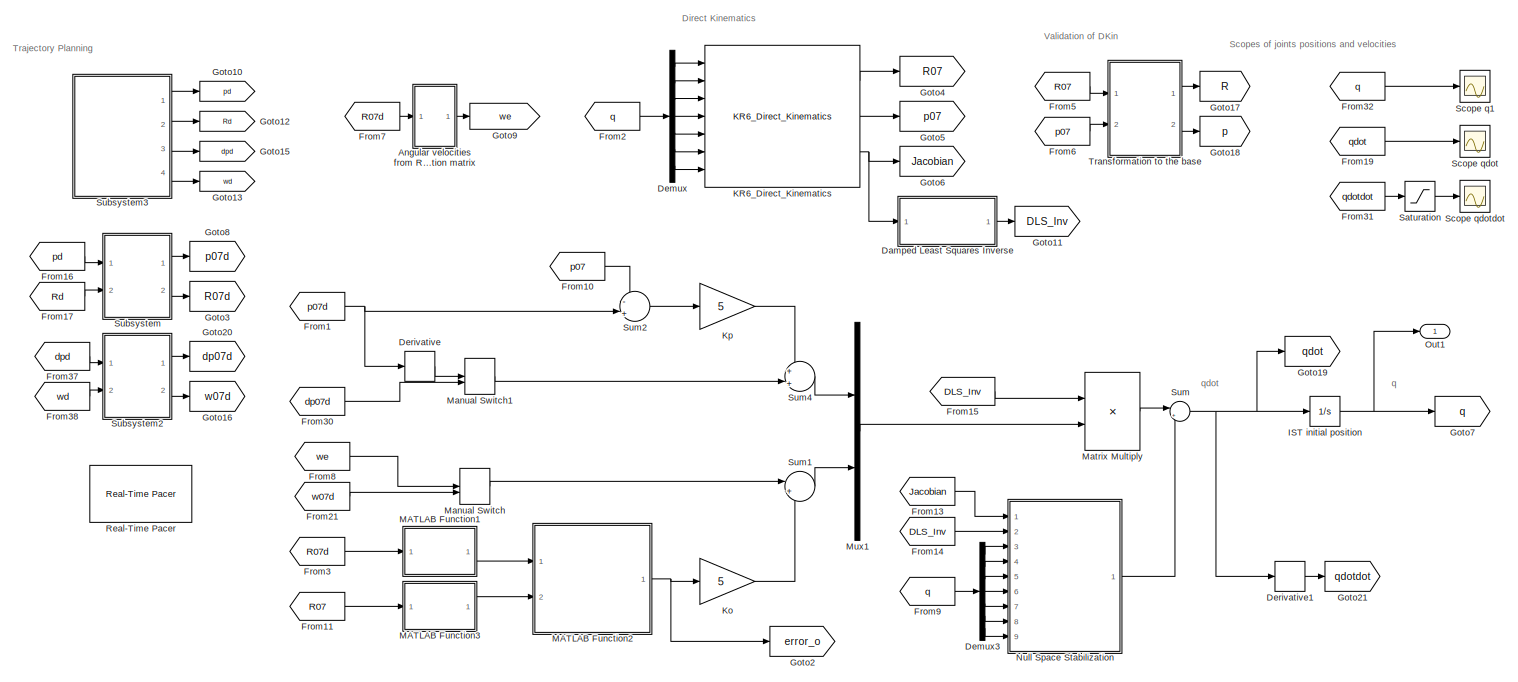
[diagram: root canvas - part 1/2, left side, full height]
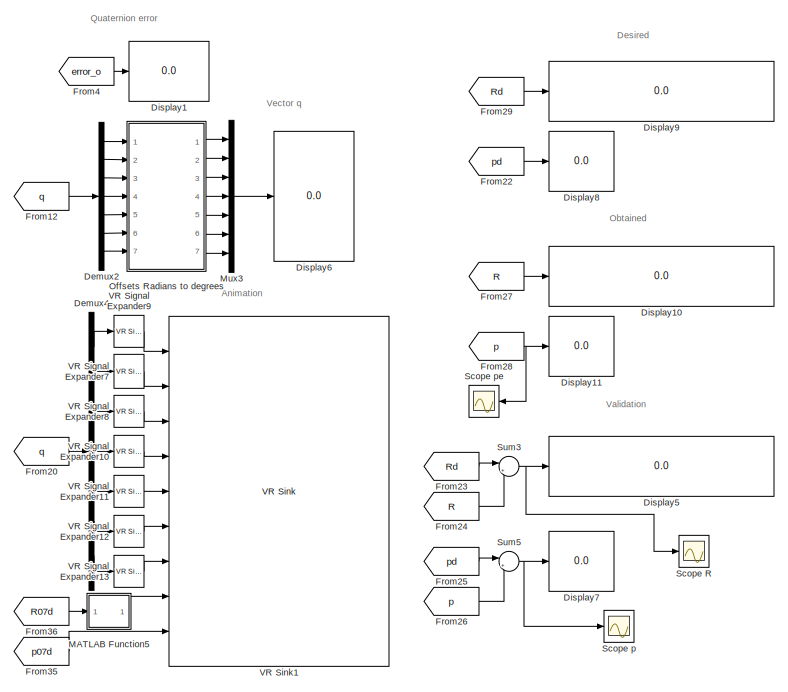
[diagram: root canvas - part 2/2, right side, full height]
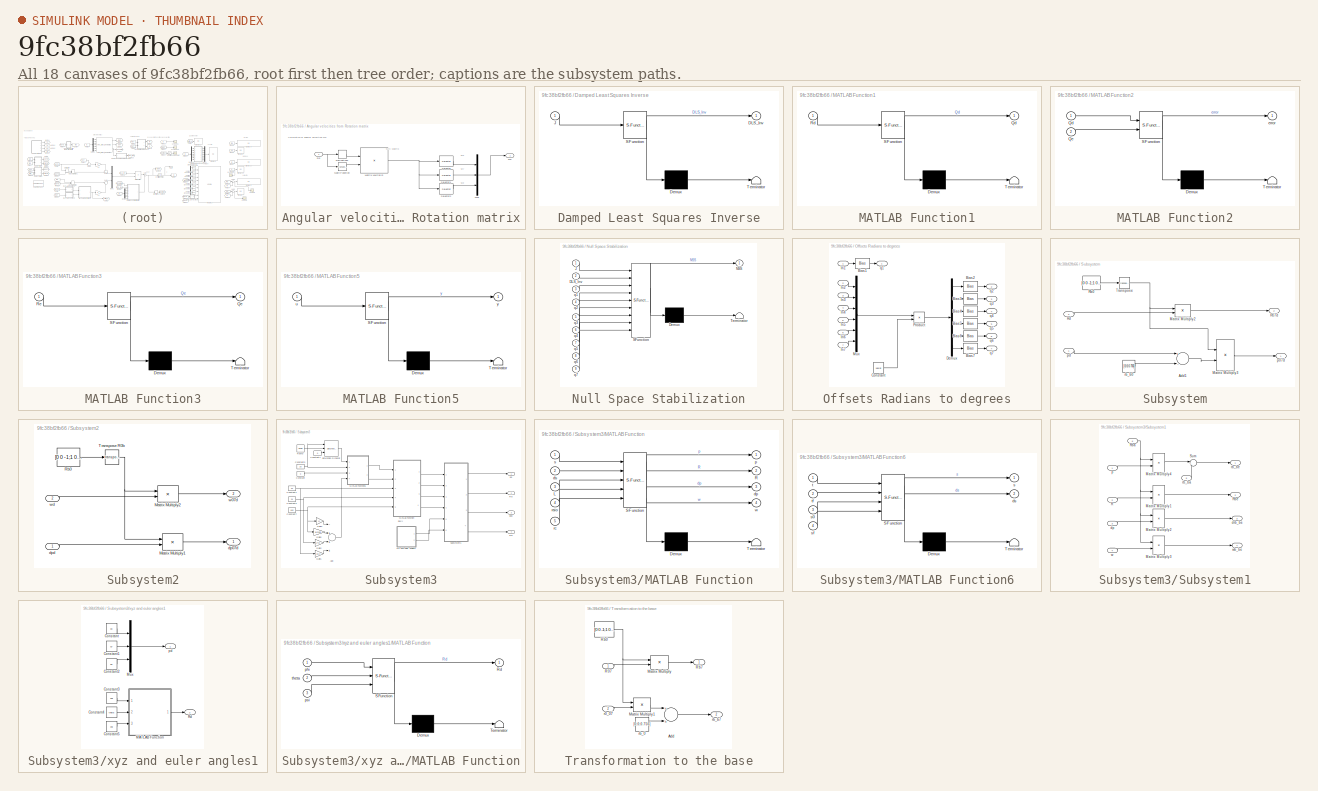
[diagram: thumbnail index - all 18 canvases of the model, root first then tree order]
MODEL slx_9fc38bf2fb66
KIND model
CONFIG AbsTol = auto
CONFIG EnableMultiTasking = off
CONFIG FixedStep = 0.01
CONFIG MaxStep = auto
CONFIG MinStep = auto
CONFIG RelTol = 1e-3
CONFIG SampleTimeConstraint = Unconstrained
CONFIG Solver = FixedStepAuto
CONFIG SolverName = FixedStepAuto
CONFIG StartTime = 0.0
CONFIG StopTime = 20
BLOCK [SubSystem] Angular velocities from Rotation matrix
  Ports = [1, 1]
  RequestExecContextInheritance = off
BLOCK [Derivative] Angular velocities from Rotation matrix/Derivative2
BLOCK [Math] Angular velocities from Rotation matrix/Math Function
  Operator = transpose
  Ports = [1, 1]
BLOCK [Product] Angular velocities from Rotation matrix/Matrix Multiply3
  InputSameDT = off
  Multiplication = Matrix(*)
  OutDataTypeStr = Inherit: Inherit via internal rule
  Ports = [2, 1]
  RndMeth = Floor
  SaturateOnIntegerOverflow = off
BLOCK [Mux] Angular velocities from Rotation matrix/Mux
  DisplayOption = bar
  Inputs = 3
  Ports = [3, 1]
BLOCK [Inport] Angular velocities from Rotation matrix/Rd
  IconDisplay = Port number
BLOCK [Selector] Angular velocities from Rotation matrix/Selector
  IndexOptions = Index vector (dialog),Index vector (dialog)
  Indices = [3],[2]
  InputPortWidth = 3
  NumberOfDimensions = 2
  OutputSizes = 1,1
  Ports = [1, 1]
BLOCK [Selector] Angular velocities from Rotation matrix/Selector1
  IndexOptions = Index vector (dialog),Index vector (dialog)
  Indices = [1],[3]
  InputPortWidth = 3
  NumberOfDimensions = 2
  OutputSizes = 1,1
  Ports = [1, 1]
BLOCK [Selector] Angular velocities from Rotation matrix/Selector2
  IndexOptions = Index vector (dialog),Index vector (dialog)
  Indices = [2],[1]
  InputPortWidth = 3
  NumberOfDimensions = 2
  OutputSizes = 1,1
  Ports = [1, 1]
BLOCK [Outport] Angular velocities from Rotation matrix/we
  IconDisplay = Port number
BLOCK [SubSystem] Damped Least Squares Inverse
  ErrorFcn = Stateflow.Translate.translate
  PermitHierarchicalResolution = ExplicitOnly
  Ports = [1, 1]
  RequestExecContextInheritance = off
  SFBlockType = MATLAB Function
  TreatAsAtomicUnit = on
BLOCK [Demux] Damped Least Squares Inverse/ Demux 
  Outputs = 1
  Ports = [1, 1]
BLOCK [S-Function] Damped Least Squares Inverse/ SFunction 
  EnableBusSupport = on
  FunctionName = sf_sfun
  PortCounts = [1 2]
  Ports = [1, 2]
  SFcnIsStateOwnerBlock = off
  SFunctionDeploymentMode = off
  Tag = Stateflow S-Function KR6_CLIK_IST 5
BLOCK [Terminator] Damped Least Squares Inverse/ Terminator 
BLOCK [Outport] Damped Least Squares Inverse/DLS_Inv
  IconDisplay = Port number
BLOCK [Inport] Damped Least Squares Inverse/J
  IconDisplay = Port number
BLOCK [Demux] Demux
  DisplayOption = bar
  Outputs = 7
  Ports = [1, 7]
BLOCK [Demux] Demux2
  DisplayOption = bar
  Outputs = 7
  Ports = [1, 7]
BLOCK [Demux] Demux3
  DisplayOption = bar
  Outputs = 7
  Ports = [1, 7]
BLOCK [Demux] Demux4
  DisplayOption = bar
  Outputs = 7
  Ports = [1, 7]
BLOCK [Derivative] Derivative
BLOCK [Derivative] Derivative1
BLOCK [Display] Display1
  Decimation = 1
  Ports = [1]
BLOCK [Display] Display10
  Decimation = 1
  Ports = [1]
BLOCK [Display] Display11
  Decimation = 1
  Ports = [1]
BLOCK [Display] Display5
  Decimation = 1
  Ports = [1]
BLOCK [Display] Display6
  Decimation = 1
  Ports = [1]
BLOCK [Display] Display7
  Decimation = 1
  Ports = [1]
BLOCK [Display] Display8
  Decimation = 1
  Ports = [1]
BLOCK [Display] Display9
  Decimation = 1
  Ports = [1]
BLOCK [From] From1
  GotoTag = p07d
BLOCK [From] From10
  GotoTag = p07
BLOCK [From] From11
  GotoTag = R07
BLOCK [From] From12
  GotoTag = q
BLOCK [From] From13
  GotoTag = Jacobian
BLOCK [From] From14
  GotoTag = DLS_Inv
BLOCK [From] From15
  GotoTag = DLS_Inv
BLOCK [From] From16
  GotoTag = pd
BLOCK [From] From17
  GotoTag = Rd
BLOCK [From] From19
  GotoTag = qdot
BLOCK [From] From2
  GotoTag = q
BLOCK [From] From20
  GotoTag = q
BLOCK [From] From21
  GotoTag = w07d
BLOCK [From] From22
  GotoTag = pd
BLOCK [From] From23
  GotoTag = Rd
BLOCK [From] From24
  GotoTag = R
BLOCK [From] From25
  GotoTag = pd
BLOCK [From] From26
  GotoTag = p
BLOCK [From] From27
  GotoTag = R
BLOCK [From] From28
  GotoTag = p
BLOCK [From] From29
  GotoTag = Rd
BLOCK [From] From3
  GotoTag = R07d
BLOCK [From] From30
  GotoTag = dp07d
BLOCK [From] From31
  GotoTag = qdotdot
BLOCK [From] From32
  GotoTag = q
BLOCK [From] From35
  GotoTag = p07d
BLOCK [From] From36
  GotoTag = R07d
BLOCK [From] From37
  GotoTag = dpd
BLOCK [From] From38
  GotoTag = wd
BLOCK [From] From4
  GotoTag = error_o
BLOCK [From] From5
  GotoTag = R07
BLOCK [From] From6
  GotoTag = p07
BLOCK [From] From7
  GotoTag = R07d
BLOCK [From] From8
  GotoTag = we
BLOCK [From] From9
  GotoTag = q
BLOCK [Goto] Goto10
  GotoTag = pd
BLOCK [Goto] Goto11
  GotoTag = DLS_Inv
BLOCK [Goto] Goto12
  GotoTag = Rd
BLOCK [Goto] Goto13
  GotoTag = wd
BLOCK [Goto] Goto15
  GotoTag = dpd
BLOCK [Goto] Goto16
  GotoTag = w07d
BLOCK [Goto] Goto17
  GotoTag = R
BLOCK [Goto] Goto18
  GotoTag = p
BLOCK [Goto] Goto19
  GotoTag = qdot
BLOCK [Goto] Goto2
  GotoTag = error_o
BLOCK [Goto] Goto20
  GotoTag = dp07d
BLOCK [Goto] Goto21
  GotoTag = qdotdot
BLOCK [Goto] Goto3
  GotoTag = R07d
BLOCK [Goto] Goto4
  GotoTag = R07
BLOCK [Goto] Goto5
  GotoTag = p07
BLOCK [Goto] Goto6
  GotoTag = Jacobian
BLOCK [Goto] Goto7
  GotoTag = q
BLOCK [Goto] Goto8
  GotoTag = p07d
BLOCK [Goto] Goto9
  GotoTag = we
BLOCK [Integrator] IST initial position
  InitialCondition = [-0.700735072364346	0.260226322165590	-1.41409718169695	0.123044715609812	0.767247092108692	-0.379724450954367	0.840390763239879]
  Ports = [1, 1]
  ZeroCross = off
BLOCK [Reference] KR6_Direct_Kinematics  REF=KR6_Lib/KR6_Direct_Kinematics
  Ports = [7, 3]
  SourceBlock = KR6_Lib/KR6_Direct_Kinematics
  SourceType = SubSystem
BLOCK [Gain] Ko
  Gain = 5
  Multiplication = Matrix(K*u)
  OutDataTypeStr = Inherit: Inherit via internal rule
  ParamDataTypeStr = Inherit: Inherit via internal rule
  SaturateOnIntegerOverflow = off
BLOCK [Gain] Kp
  Gain = 5
  Multiplication = Matrix(K*u)
  OutDataTypeStr = Inherit: Inherit via internal rule
  ParamDataTypeStr = Inherit: Inherit via internal rule
  SaturateOnIntegerOverflow = off
BLOCK [SubSystem] MATLAB Function1
  ErrorFcn = Stateflow.Translate.translate
  PermitHierarchicalResolution = ExplicitOnly
  Ports = [1, 1]
  RequestExecContextInheritance = off
  SFBlockType = MATLAB Function
  TreatAsAtomicUnit = on
BLOCK [Demux] MATLAB Function1/ Demux 
  Outputs = 1
  Ports = [1, 1]
BLOCK [S-Function] MATLAB Function1/ SFunction 
  EnableBusSupport = on
  FunctionName = sf_sfun
  PortCounts = [1 2]
  Ports = [1, 2]
  SFcnIsStateOwnerBlock = off
  SFunctionDeploymentMode = off
  Tag = Stateflow S-Function KR6_CLIK_IST 6
BLOCK [Terminator] MATLAB Function1/ Terminator 
BLOCK [Outport] MATLAB Function1/Qd
  IconDisplay = Port number
BLOCK [Inport] MATLAB Function1/Rd
  IconDisplay = Port number
BLOCK [SubSystem] MATLAB Function2
  ErrorFcn = Stateflow.Translate.translate
  PermitHierarchicalResolution = ExplicitOnly
  Ports = [2, 1]
  RequestExecContextInheritance = off
  SFBlockType = MATLAB Function
  TreatAsAtomicUnit = on
BLOCK [Demux] MATLAB Function2/ Demux 
  Outputs = 1
  Ports = [1, 1]
BLOCK [S-Function] MATLAB Function2/ SFunction 
  EnableBusSupport = on
  FunctionName = sf_sfun
  PortCounts = [2 2]
  Ports = [2, 2]
  SFcnIsStateOwnerBlock = off
  SFunctionDeploymentMode = off
  Tag = Stateflow S-Function KR6_CLIK_IST 7
BLOCK [Terminator] MATLAB Function2/ Terminator 
BLOCK [Inport] MATLAB Function2/Qd
  IconDisplay = Port number
BLOCK [Inport] MATLAB Function2/Qe
  IconDisplay = Port number
  Port = 2
BLOCK [Outport] MATLAB Function2/error
  IconDisplay = Port number
BLOCK [SubSystem] MATLAB Function3
  ErrorFcn = Stateflow.Translate.translate
  PermitHierarchicalResolution = ExplicitOnly
  Ports = [1, 1]
  RequestExecContextInheritance = off
  SFBlockType = MATLAB Function
  TreatAsAtomicUnit = on
BLOCK [Demux] MATLAB Function3/ Demux 
  Outputs = 1
  Ports = [1, 1]
BLOCK [S-Function] MATLAB Function3/ SFunction 
  EnableBusSupport = on
  FunctionName = sf_sfun
  PortCounts = [1 2]
  Ports = [1, 2]
  SFcnIsStateOwnerBlock = off
  SFunctionDeploymentMode = off
  Tag = Stateflow S-Function KR6_CLIK_IST 2
BLOCK [Terminator] MATLAB Function3/ Terminator 
BLOCK [Outport] MATLAB Function3/Qe
  IconDisplay = Port number
BLOCK [Inport] MATLAB Function3/Re
  IconDisplay = Port number
BLOCK [SubSystem] MATLAB Function5
  ErrorFcn = Stateflow.Translate.translate
  PermitHierarchicalResolution = ExplicitOnly
  Ports = [1, 1]
  RequestExecContextInheritance = off
  SFBlockType = MATLAB Function
  TreatAsAtomicUnit = on
BLOCK [Demux] MATLAB Function5/ Demux 
  Outputs = 1
  Ports = [1, 1]
BLOCK [S-Function] MATLAB Function5/ SFunction 
  EnableBusSupport = on
  FunctionName = sf_sfun
  PortCounts = [1 2]
  Ports = [1, 2]
  SFcnIsStateOwnerBlock = off
  SFunctionDeploymentMode = off
  Tag = Stateflow S-Function KR6_CLIK_IST 9
BLOCK [Terminator] MATLAB Function5/ Terminator 
BLOCK [Inport] MATLAB Function5/u
  IconDisplay = Port number
BLOCK [Outport] MATLAB Function5/y
  IconDisplay = Port number
BLOCK [ManualSwitch] Manual Switch
  CurrentSetting = 0
BLOCK [ManualSwitch] Manual Switch1
  CurrentSetting = 0
BLOCK [Product] Matrix Multiply
  InputSameDT = off
  Multiplication = Matrix(*)
  OutDataTypeStr = Inherit: Inherit via internal rule
  Ports = [2, 1]
  RndMeth = Floor
  SaturateOnIntegerOverflow = off
BLOCK [Mux] Mux1
  DisplayOption = bar
  Inputs = 2
  Ports = [2, 1]
BLOCK [Mux] Mux3
  DisplayOption = bar
  Inputs = 7
  Ports = [7, 1]
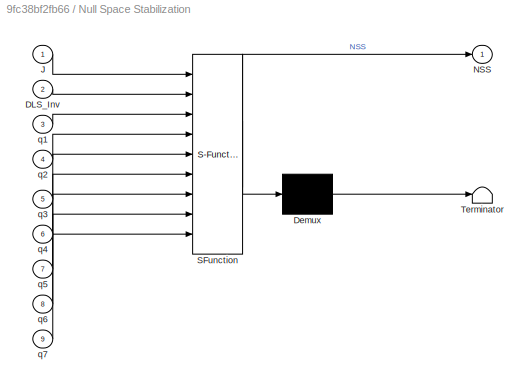
BLOCK [SubSystem] Null Space Stabilization
  ErrorFcn = Stateflow.Translate.translate
  PermitHierarchicalResolution = ExplicitOnly
  Ports = [9, 1]
  RequestExecContextInheritance = off
  SFBlockType = MATLAB Function
  TreatAsAtomicUnit = on
BLOCK [Demux] Null Space Stabilization/ Demux 
  Outputs = 1
  Ports = [1, 1]
BLOCK [S-Function] Null Space Stabilization/ SFunction 
  EnableBusSupport = on
  FunctionName = sf_sfun
  PortCounts = [9 2]
  Ports = [9, 2]
  SFcnIsStateOwnerBlock = off
  SFunctionDeploymentMode = off
  Tag = Stateflow S-Function KR6_CLIK_IST 8
BLOCK [Terminator] Null Space Stabilization/ Terminator 
BLOCK [Inport] Null Space Stabilization/DLS_Inv
  IconDisplay = Port number
  Port = 2
BLOCK [Inport] Null Space Stabilization/J
  IconDisplay = Port number
BLOCK [Outport] Null Space Stabilization/NSS
  IconDisplay = Port number
BLOCK [Inport] Null Space Stabilization/q1
  IconDisplay = Port number
  Port = 3
BLOCK [Inport] Null Space Stabilization/q2
  IconDisplay = Port number
  Port = 4
BLOCK [Inport] Null Space Stabilization/q3
  IconDisplay = Port number
  Port = 5
BLOCK [Inport] Null Space Stabilization/q4
  IconDisplay = Port number
  Port = 6
BLOCK [Inport] Null Space Stabilization/q5
  IconDisplay = Port number
  Port = 7
BLOCK [Inport] Null Space Stabilization/q6
  IconDisplay = Port number
  Port = 8
BLOCK [Inport] Null Space Stabilization/q7
  IconDisplay = Port number
  Port = 9
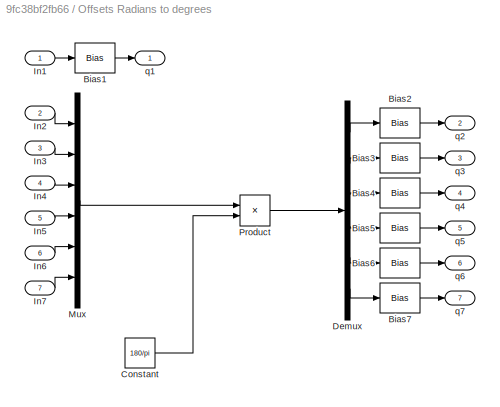
BLOCK [SubSystem] Offsets Radians to degrees
  Ports = [7, 7]
  RequestExecContextInheritance = off
BLOCK [Bias] Offsets Radians to degrees/Bias1
  SaturateOnIntegerOverflow = off
BLOCK [Bias] Offsets Radians to degrees/Bias2
  SaturateOnIntegerOverflow = off
BLOCK [Bias] Offsets Radians to degrees/Bias3
  SaturateOnIntegerOverflow = off
BLOCK [Bias] Offsets Radians to degrees/Bias4
  Bias = 90
  SaturateOnIntegerOverflow = off
BLOCK [Bias] Offsets Radians to degrees/Bias5
  SaturateOnIntegerOverflow = off
BLOCK [Bias] Offsets Radians to degrees/Bias6
  SaturateOnIntegerOverflow = off
BLOCK [Bias] Offsets Radians to degrees/Bias7
  Bias = -180
  SaturateOnIntegerOverflow = off
BLOCK [Constant] Offsets Radians to degrees/Constant
  Value = 180/pi
BLOCK [Demux] Offsets Radians to degrees/Demux
  DisplayOption = bar
  Outputs = 6
  Ports = [1, 6]
BLOCK [Inport] Offsets Radians to degrees/In1
  IconDisplay = Port number
BLOCK [Inport] Offsets Radians to degrees/In2
  IconDisplay = Port number
  Port = 2
BLOCK [Inport] Offsets Radians to degrees/In3
  IconDisplay = Port number
  Port = 3
BLOCK [Inport] Offsets Radians to degrees/In4
  IconDisplay = Port number
  Port = 4
BLOCK [Inport] Offsets Radians to degrees/In5
  IconDisplay = Port number
  Port = 5
BLOCK [Inport] Offsets Radians to degrees/In6
  IconDisplay = Port number
  Port = 6
BLOCK [Inport] Offsets Radians to degrees/In7
  IconDisplay = Port number
  Port = 7
BLOCK [Mux] Offsets Radians to degrees/Mux
  DisplayOption = bar
  Inputs = 6
  Ports = [6, 1]
BLOCK [Product] Offsets Radians to degrees/Product
  InputSameDT = off
  OutDataTypeStr = Inherit: Inherit via internal rule
  Ports = [2, 1]
  RndMeth = Floor
  SaturateOnIntegerOverflow = off
BLOCK [Outport] Offsets Radians to degrees/q1
  IconDisplay = Port number
BLOCK [Outport] Offsets Radians to degrees/q2
  IconDisplay = Port number
  Port = 2
BLOCK [Outport] Offsets Radians to degrees/q3
  IconDisplay = Port number
  Port = 3
BLOCK [Outport] Offsets Radians to degrees/q4
  IconDisplay = Port number
  Port = 4
BLOCK [Outport] Offsets Radians to degrees/q5
  IconDisplay = Port number
  Port = 5
BLOCK [Outport] Offsets Radians to degrees/q6
  IconDisplay = Port number
  Port = 6
BLOCK [Outport] Offsets Radians to degrees/q7
  IconDisplay = Port number
  Port = 7
BLOCK [Outport] Out1
  IconDisplay = Port number
  SignalName = q
BLOCK [Reference] Real-Time Pacer  REF=realtime_pacer_lib/Real-Time Pacer
  Ports = []
  SourceBlock = realtime_pacer_lib/Real-Time Pacer
  SourceType = RealTime_Pacer
BLOCK [Saturate] Saturation
  AttributesFormatString = %<LowerLimit>\nto\n%<UpperLimit>
  InputPortMap = u0
  LowerLimit = -50
  OutDataTypeStr = Inherit: Inherit via back propagation
  Ports = [1, 1]
  UpperLimit = 50
BLOCK [Scope] Scope R
  Floating = off
  NumInputPorts = 1
  Ports = [1]
  ScopeSpecificationString = Simulink.scopes.TimeScopeBlockCfg('CurrentConfiguration', extmgr.ConfigurationSet(extmgr.Configuration('Core','General UI',true),extmgr.Configuration('Core','Source UI',true),extmgr.Configuration('Sources','WiredSimulink',true,'DataLoggingVariableName','ScopeData2'),extmgr.Configuration('Visuals','Time Domain',true,'SerializedDisplays',{struct('MinYLimReal','-0.01531','MaxYLimReal','0.01116','YLab...<+1719ch>
BLOCK [Scope] Scope p
  Floating = off
  NumInputPorts = 1
  Ports = [1]
  ScopeSpecificationString = Simulink.scopes.TimeScopeBlockCfg('CurrentConfiguration', extmgr.ConfigurationSet(extmgr.Configuration('Core','General UI',true),extmgr.Configuration('Core','Source UI',true),extmgr.Configuration('Sources','WiredSimulink',true,'DataLoggingVariableName','ScopeData1'),extmgr.Configuration('Visuals','Time Domain',true,'SerializedDisplays',{struct('MinYLimReal','-0.04284','MaxYLimReal','0.04849','YLab...<+1608ch>
BLOCK [Scope] Scope pe
  Floating = off
  NumInputPorts = 1
  Ports = [1]
  ScopeSpecificationString = Simulink.scopes.TimeScopeBlockCfg('CurrentConfiguration', extmgr.ConfigurationSet(extmgr.Configuration('Core','General UI',true),extmgr.Configuration('Core','Source UI',true),extmgr.Configuration('Sources','WiredSimulink',true,'DataLoggingVariableName','p_e','DataLogging',true),extmgr.Configuration('Visuals','Time Domain',true,'SerializedDisplays',{struct('MinYLimReal','0.22496','MaxYLimReal','0.9...<+1627ch>
BLOCK [Scope] Scope q1
  Floating = off
  NumInputPorts = 1
  Ports = [1]
  ScopeSpecificationString = Simulink.scopes.TimeScopeBlockCfg('CurrentConfiguration', extmgr.ConfigurationSet(extmgr.Configuration('Core','General UI',true),extmgr.Configuration('Core','Source UI',true),extmgr.Configuration('Sources','WiredSimulink',true,'DataLoggingVariableName','q','DataLogging',true,'DataLoggingSaveFormat','StructureWithTime'),extmgr.Configuration('Visuals','Time Domain',true,'SerializedDisplays',{struct(...<+1689ch>
BLOCK [Scope] Scope qdot
  Floating = off
  NumInputPorts = 1
  Ports = [1]
  ScopeSpecificationString = Simulink.scopes.TimeScopeBlockCfg('CurrentConfiguration', extmgr.ConfigurationSet(extmgr.Configuration('Core','General UI',true),extmgr.Configuration('Core','Source UI',true),extmgr.Configuration('Sources','WiredSimulink',true,'DataLoggingVariableName','qdot','DataLogging',true,'DataLoggingSaveFormat','StructureWithTime'),extmgr.Configuration('Visuals','Time Domain',true,'SerializedDisplays',{stru...<+1797ch>
BLOCK [Scope] Scope qdotdot
  Floating = off
  NumInputPorts = 1
  Ports = [1]
  ScopeSpecificationString = Simulink.scopes.TimeScopeBlockCfg('CurrentConfiguration', extmgr.ConfigurationSet(extmgr.Configuration('Core','General UI',true),extmgr.Configuration('Core','Source UI',true),extmgr.Configuration('Sources','WiredSimulink',true,'DataLoggingVariableName','qdotdot','DataLogging',true,'DataLoggingSaveFormat','StructureWithTime'),extmgr.Configuration('Visuals','Time Domain',true,'SerializedDisplays',{s...<+1754ch>
BLOCK [SubSystem] Subsystem
  Ports = [2, 2]
  RequestExecContextInheritance = off
BLOCK [Sum] Subsystem/Add1
  InputSameDT = off
  Inputs = +-
  OutDataTypeStr = Inherit: Inherit via internal rule
  Ports = [2, 1]
  SaturateOnIntegerOverflow = off
BLOCK [Product] Subsystem/Matrix Multiply2
  InputSameDT = off
  Multiplication = Matrix(*)
  OutDataTypeStr = Inherit: Inherit via internal rule
  Ports = [2, 1]
  RndMeth = Floor
  SaturateOnIntegerOverflow = off
BLOCK [Product] Subsystem/Matrix Multiply3
  InputSameDT = off
  Multiplication = Matrix(*)
  OutDataTypeStr = Inherit: Inherit via internal rule
  Ports = [2, 1]
  RndMeth = Floor
  SaturateOnIntegerOverflow = off
BLOCK [Outport] Subsystem/R07d
  IconDisplay = Port number
  Port = 2
BLOCK [Constant] Subsystem/Rb0
  Value = [0 0 -1;1 0 0; 0 -1 0]
BLOCK [Inport] Subsystem/Rd
  IconDisplay = Port number
  Port = 2
BLOCK [Math] Subsystem/Transpose
  Operator = transpose
  Ports = [1, 1]
BLOCK [Outport] Subsystem/p07d
  IconDisplay = Port number
BLOCK [Inport] Subsystem/pd
  IconDisplay = Port number
BLOCK [Constant] Subsystem/rb_b0
  Value = [0;0;0.756]
BLOCK [SubSystem] Subsystem2
  Ports = [2, 2]
  RequestExecContextInheritance = off
BLOCK [Product] Subsystem2/Matrix Multiply1
  InputSameDT = off
  Multiplication = Matrix(*)
  OutDataTypeStr = Inherit: Inherit via internal rule
  Ports = [2, 1]
  RndMeth = Floor
  SaturateOnIntegerOverflow = off
BLOCK [Product] Subsystem2/Matrix Multiply2
  InputSameDT = off
  Multiplication = Matrix(*)
  OutDataTypeStr = Inherit: Inherit via internal rule
  Ports = [2, 1]
  RndMeth = Floor
  SaturateOnIntegerOverflow = off
BLOCK [Constant] Subsystem2/Rb0
  Value = [0 0 -1;1 0 0; 0 -1 0]
BLOCK [Math] Subsystem2/Transpose R0b
  Operator = transpose
  Ports = [1, 1]
BLOCK [Outport] Subsystem2/dp07d
  IconDisplay = Port number
BLOCK [Inport] Subsystem2/dpd
  IconDisplay = Port number
BLOCK [Outport] Subsystem2/w07d
  IconDisplay = Port number
  Port = 2
BLOCK [Inport] Subsystem2/wd
  IconDisplay = Port number
  Port = 2
BLOCK [SubSystem] Subsystem3
  Ports = [0, 4]
  RequestExecContextInheritance = off
BLOCK [Sum] Subsystem3/Add
  InputSameDT = off
  Inputs = -+++
  OutDataTypeStr = Inherit: Inherit via internal rule
  Ports = [4, 1]
  SaturateOnIntegerOverflow = off
BLOCK [Constant] Subsystem3/Constant
  Value = 0
BLOCK [Constant] Subsystem3/Constant1
  Value = 0.4
BLOCK [Constant] Subsystem3/Constant2
  Value = 0.1
BLOCK [Constant] Subsystem3/Constant3
  Value = 20
BLOCK [Constant] Subsystem3/Constant4
  Value = 0
BLOCK [Constant] Subsystem3/Constant7
  Value = 0.05
BLOCK [Gain] Subsystem3/Gain1
  Gain = 15/2
  OutDataTypeStr = Inherit: Inherit via internal rule
  ParamDataTypeStr = Inherit: Inherit via internal rule
  SaturateOnIntegerOverflow = off
BLOCK [Gain] Subsystem3/Gain2
  Gain = 2*pi
  OutDataTypeStr = Inherit: Inherit via internal rule
  ParamDataTypeStr = Inherit: Inherit via internal rule
  SaturateOnIntegerOverflow = off
BLOCK [Gain] Subsystem3/Gain4
  Gain = 12
  OutDataTypeStr = Inherit: Inherit via internal rule
  ParamDataTypeStr = Inherit: Inherit via internal rule
  SaturateOnIntegerOverflow = off
BLOCK [Gain] Subsystem3/Gain5
  Gain = 9/2*pi
  OutDataTypeStr = Inherit: Inherit via internal rule
  ParamDataTypeStr = Inherit: Inherit via internal rule
  SaturateOnIntegerOverflow = off
BLOCK [SubSystem] Subsystem3/MATLAB Function
  ErrorFcn = Stateflow.Translate.translate
  PermitHierarchicalResolution = ExplicitOnly
  Ports = [5, 4]
  RequestExecContextInheritance = off
  SFBlockType = MATLAB Function
  TreatAsAtomicUnit = on
BLOCK [Demux] Subsystem3/MATLAB Function/ Demux 
  Outputs = 1
  Ports = [1, 1]
BLOCK [S-Function] Subsystem3/MATLAB Function/ SFunction 
  EnableBusSupport = on
  FunctionName = sf_sfun
  PortCounts = [5 5]
  Ports = [5, 5]
  SFcnIsStateOwnerBlock = off
  SFunctionDeploymentMode = off
  Tag = Stateflow S-Function KR6_CLIK_IST 1
BLOCK [Terminator] Subsystem3/MATLAB Function/ Terminator 
BLOCK [Inport] Subsystem3/MATLAB Function/L
  IconDisplay = Port number
  Port = 3
BLOCK [Outport] Subsystem3/MATLAB Function/R
  IconDisplay = Port number
  Port = 2
BLOCK [Outport] Subsystem3/MATLAB Function/dp
  IconDisplay = Port number
  Port = 3
BLOCK [Inport] Subsystem3/MATLAB Function/ds
  IconDisplay = Port number
  Port = 2
BLOCK [Outport] Subsystem3/MATLAB Function/p
  IconDisplay = Port number
BLOCK [Inport] Subsystem3/MATLAB Function/raio
  IconDisplay = Port number
  Port = 4
BLOCK [Inport] Subsystem3/MATLAB Function/rc
  IconDisplay = Port number
  Port = 5
BLOCK [Inport] Subsystem3/MATLAB Function/s
  IconDisplay = Port number
BLOCK [Outport] Subsystem3/MATLAB Function/w
  IconDisplay = Port number
  Port = 4
BLOCK [SubSystem] Subsystem3/MATLAB Function6
  ErrorFcn = Stateflow.Translate.translate
  PermitHierarchicalResolution = ExplicitOnly
  Ports = [4, 2]
  RequestExecContextInheritance = off
  SFBlockType = MATLAB Function
  TreatAsAtomicUnit = on
BLOCK [Demux] Subsystem3/MATLAB Function6/ Demux 
  Outputs = 1
  Ports = [1, 1]
BLOCK [S-Function] Subsystem3/MATLAB Function6/ SFunction 
  EnableBusSupport = on
  FunctionName = sf_sfun
  PortCounts = [4 3]
  Ports = [4, 3]
  SFcnIsStateOwnerBlock = off
  SFunctionDeploymentMode = off
  Tag = Stateflow S-Function KR6_CLIK_IST 10
BLOCK [Terminator] Subsystem3/MATLAB Function6/ Terminator 
BLOCK [Outport] Subsystem3/MATLAB Function6/ds
  IconDisplay = Port number
  Port = 2
BLOCK [Outport] Subsystem3/MATLAB Function6/s
  IconDisplay = Port number
BLOCK [Inport] Subsystem3/MATLAB Function6/s0
  IconDisplay = Port number
  Port = 3
BLOCK [Inport] Subsystem3/MATLAB Function6/sf
  IconDisplay = Port number
  Port = 4
BLOCK [Inport] Subsystem3/MATLAB Function6/t
  IconDisplay = Port number
BLOCK [Inport] Subsystem3/MATLAB Function6/tf
  IconDisplay = Port number
  Port = 2
BLOCK [Reference] Subsystem3/Ramp  REF=simulink/Sources/Ramp
  Ports = [0, 1]
  SourceBlock = simulink/Sources/Ramp
  SourceProductBaseCode = SL
  SourceProductName = Simulink
  SourceType = Ramp
BLOCK [Outport] Subsystem3/Rd
  IconDisplay = Port number
  Port = 2
BLOCK [Reference] Subsystem3/Saturation Dynamic  REF=simulink/Discontinuities/Saturation
Dynamic
  Ports = [3, 1]
  SourceBlock = simulink/Discontinuities/Saturation\nDynamic
  SourceProductBaseCode = SL
  SourceProductName = Simulink
  SourceType = Saturation Dynamic
BLOCK [SubSystem] Subsystem3/Subsystem1
  Ports = [6, 4]
  RequestExecContextInheritance = off
BLOCK [Product] Subsystem3/Subsystem1/Matrix Multiply1
  InputSameDT = off
  Multiplication = Matrix(*)
  OutDataTypeStr = Inherit: Inherit via internal rule
  Ports = [2, 1]
  RndMeth = Floor
  SaturateOnIntegerOverflow = off
BLOCK [Product] Subsystem3/Subsystem1/Matrix Multiply2
  InputSameDT = off
  Multiplication = Matrix(*)
  OutDataTypeStr = Inherit: Inherit via internal rule
  Ports = [2, 1]
  RndMeth = Floor
  SaturateOnIntegerOverflow = off
BLOCK [Product] Subsystem3/Subsystem1/Matrix Multiply3
  InputSameDT = off
  Multiplication = Matrix(*)
  OutDataTypeStr = Inherit: Inherit via internal rule
  Ports = [2, 1]
  RndMeth = Floor
  SaturateOnIntegerOverflow = off
BLOCK [Product] Subsystem3/Subsystem1/Matrix Multiply4
  InputSameDT = off
  Multiplication = Matrix(*)
  OutDataTypeStr = Inherit: Inherit via internal rule
  Ports = [2, 1]
  RndMeth = Floor
  SaturateOnIntegerOverflow = off
BLOCK [Inport] Subsystem3/Subsystem1/R
  IconDisplay = Port number
  Port = 2
BLOCK [Inport] Subsystem3/Subsystem1/Rba
  IconDisplay = Port number
  Port = 6
BLOCK [Outport] Subsystem3/Subsystem1/Rbe 
  IconDisplay = Port number
  Port = 2
BLOCK [Sum] Subsystem3/Subsystem1/Sum
  IconShape = round
  InputSameDT = off
  Inputs = |++
  OutDataTypeStr = Inherit: Inherit via internal rule
  Ports = [2, 1]
  SaturateOnIntegerOverflow = off
BLOCK [Inport] Subsystem3/Subsystem1/dp
  IconDisplay = Port number
  Port = 3
BLOCK [Outport] Subsystem3/Subsystem1/drb_be 
  IconDisplay = Port number
  Port = 3
BLOCK [Inport] Subsystem3/Subsystem1/p
  IconDisplay = Port number
BLOCK [Inport] Subsystem3/Subsystem1/rb_ba
  IconDisplay = Port number
  Port = 5
BLOCK [Outport] Subsystem3/Subsystem1/rb_be 
  IconDisplay = Port number
BLOCK [Inport] Subsystem3/Subsystem1/w
  IconDisplay = Port number
  Port = 4
BLOCK [Outport] Subsystem3/Subsystem1/wb_be
  IconDisplay = Port number
  Port = 4
BLOCK [Outport] Subsystem3/dpd
  IconDisplay = Port number
  Port = 3
BLOCK [Outport] Subsystem3/pd
  IconDisplay = Port number
BLOCK [Outport] Subsystem3/wd
  IconDisplay = Port number
  Port = 4
BLOCK [SubSystem] Subsystem3/xyz and euler angles1
  Ports = [0, 2]
  RequestExecContextInheritance = off
BLOCK [Constant] Subsystem3/xyz and euler angles1/Constant
  Value = px
BLOCK [Constant] Subsystem3/xyz and euler angles1/Constant1
  Value = py
BLOCK [Constant] Subsystem3/xyz and euler angles1/Constant2
  Value = pz
BLOCK [Constant] Subsystem3/xyz and euler angles1/Constant3
  Value = phi
BLOCK [Constant] Subsystem3/xyz and euler angles1/Constant4
  Value = theta
BLOCK [Constant] Subsystem3/xyz and euler angles1/Constant5
  Value = psi
BLOCK [SubSystem] Subsystem3/xyz and euler angles1/MATLAB Function
  ErrorFcn = Stateflow.Translate.translate
  PermitHierarchicalResolution = ExplicitOnly
  Ports = [3, 1]
  RequestExecContextInheritance = off
  SFBlockType = MATLAB Function
  TreatAsAtomicUnit = on
BLOCK [Demux] Subsystem3/xyz and euler angles1/MATLAB Function/ Demux 
  Outputs = 1
  Ports = [1, 1]
BLOCK [S-Function] Subsystem3/xyz and euler angles1/MATLAB Function/ SFunction 
  EnableBusSupport = on
  FunctionName = sf_sfun
  PortCounts = [3 2]
  Ports = [3, 2]
  SFcnIsStateOwnerBlock = off
  SFunctionDeploymentMode = off
  Tag = Stateflow S-Function KR6_CLIK_IST 11
BLOCK [Terminator] Subsystem3/xyz and euler angles1/MATLAB Function/ Terminator 
BLOCK [Outport] Subsystem3/xyz and euler angles1/MATLAB Function/Rd
  IconDisplay = Port number
BLOCK [Inport] Subsystem3/xyz and euler angles1/MATLAB Function/phi
  IconDisplay = Port number
BLOCK [Inport] Subsystem3/xyz and euler angles1/MATLAB Function/psi
  IconDisplay = Port number
  Port = 3
BLOCK [Inport] Subsystem3/xyz and euler angles1/MATLAB Function/theta
  IconDisplay = Port number
  Port = 2
BLOCK [Mux] Subsystem3/xyz and euler angles1/Mux
  DisplayOption = bar
  Inputs = 3
  Ports = [3, 1]
BLOCK [Outport] Subsystem3/xyz and euler angles1/Rd
  IconDisplay = Port number
  Port = 2
BLOCK [Outport] Subsystem3/xyz and euler angles1/pd
  IconDisplay = Port number
BLOCK [Sum] Sum
  IconShape = round
  InputSameDT = off
  Inputs = |++
  OutDataTypeStr = Inherit: Inherit via internal rule
  Ports = [2, 1]
  SaturateOnIntegerOverflow = off
BLOCK [Sum] Sum1
  IconShape = round
  InputSameDT = off
  Inputs = |++
  OutDataTypeStr = Inherit: Inherit via internal rule
  Ports = [2, 1]
  SaturateOnIntegerOverflow = off
BLOCK [Sum] Sum2
  IconShape = round
  InputSameDT = off
  Inputs = -|+||
  OutDataTypeStr = Inherit: Inherit via internal rule
  Ports = [2, 1]
  SaturateOnIntegerOverflow = off
BLOCK [Sum] Sum3
  IconShape = round
  InputSameDT = off
  Inputs = |+-
  OutDataTypeStr = Inherit: Inherit via internal rule
  Ports = [2, 1]
  SaturateOnIntegerOverflow = off
BLOCK [Sum] Sum4
  IconShape = round
  InputSameDT = off
  Inputs = +|+||
  OutDataTypeStr = Inherit: Inherit via internal rule
  Ports = [2, 1]
  SaturateOnIntegerOverflow = off
BLOCK [Sum] Sum5
  IconShape = round
  InputSameDT = off
  Inputs = |+-
  OutDataTypeStr = Inherit: Inherit via internal rule
  Ports = [2, 1]
  SaturateOnIntegerOverflow = off
BLOCK [SubSystem] Transformation to the base
  Ports = [2, 2]
  RequestExecContextInheritance = off
BLOCK [Sum] Transformation to the base/Add
  InputSameDT = off
  OutDataTypeStr = Inherit: Inherit via internal rule
  Ports = [2, 1]
  SaturateOnIntegerOverflow = off
BLOCK [Product] Transformation to the base/Matrix Multiply
  InputSameDT = off
  Multiplication = Matrix(*)
  OutDataTypeStr = Inherit: Inherit via internal rule
  Ports = [2, 1]
  RndMeth = Floor
  SaturateOnIntegerOverflow = off
BLOCK [Product] Transformation to the base/Matrix Multiply1
  InputSameDT = off
  Multiplication = Matrix(*)
  OutDataTypeStr = Inherit: Inherit via internal rule
  Ports = [2, 1]
  RndMeth = Floor
  SaturateOnIntegerOverflow = off
BLOCK [Inport] Transformation to the base/R07
  IconDisplay = Port number
BLOCK [Constant] Transformation to the base/Rb0
  Value = [0 0 -1;1 0 0; 0 -1 0]
BLOCK [Outport] Transformation to the base/Rb7
  IconDisplay = Port number
BLOCK [Inport] Transformation to the base/r0_07
  IconDisplay = Port number
  Port = 2
BLOCK [Constant] Transformation to the base/rb_0
  Value = [0;0;0.756]
BLOCK [Outport] Transformation to the base/rb_b7
  IconDisplay = Port number
  Port = 2
BLOCK [Reference] VR Signal Expander10  REF=vrlib/VR Signal Expander
  Ports = [1, 1]
  SourceBlock = vrlib/VR Signal Expander
  SourceProductBaseCode = VR
  SourceProductName = Simulink 3D Animation
  SourceType = VR Signal Expander
BLOCK [Reference] VR Signal Expander11  REF=vrlib/VR Signal Expander
  Ports = [1, 1]
  SourceBlock = vrlib/VR Signal Expander
  SourceProductBaseCode = VR
  SourceProductName = Simulink 3D Animation
  SourceType = VR Signal Expander
BLOCK [Reference] VR Signal Expander12  REF=vrlib/VR Signal Expander
  Ports = [1, 1]
  SourceBlock = vrlib/VR Signal Expander
  SourceProductBaseCode = VR
  SourceProductName = Simulink 3D Animation
  SourceType = VR Signal Expander
BLOCK [Reference] VR Signal Expander13  REF=vrlib/VR Signal Expander
  Ports = [1, 1]
  SourceBlock = vrlib/VR Signal Expander
  SourceProductBaseCode = VR
  SourceProductName = Simulink 3D Animation
  SourceType = VR Signal Expander
BLOCK [Reference] VR Signal Expander7  REF=vrlib/VR Signal Expander
  Ports = [1, 1]
  SourceBlock = vrlib/VR Signal Expander
  SourceProductBaseCode = VR
  SourceProductName = Simulink 3D Animation
  SourceType = VR Signal Expander
BLOCK [Reference] VR Signal Expander8  REF=vrlib/VR Signal Expander
  Ports = [1, 1]
  SourceBlock = vrlib/VR Signal Expander
  SourceProductBaseCode = VR
  SourceProductName = Simulink 3D Animation
  SourceType = VR Signal Expander
BLOCK [Reference] VR Signal Expander9  REF=vrlib/VR Signal Expander
  Ports = [1, 1]
  SourceBlock = vrlib/VR Signal Expander
  SourceProductBaseCode = VR
  SourceProductName = Simulink 3D Animation
  SourceType = VR Signal Expander
BLOCK [Reference] VR Sink1  REF=vrlib/VR Sink
  InstantiateOnLoad = on
  Ports = [9]
  SourceBlock = vrlib/VR Sink
  SourceProductBaseCode = VR
  SourceProductName = Simulink 3D Animation
  SourceType = Virtual Reality Sink
ANNOTATION (root): Quaternion error
ANNOTATION (root): Scopes of joints positions and velocities
ANNOTATION (root): Animation
ANNOTATION (root): Direct Kinematics
ANNOTATION (root): Trajectory Planning
ANNOTATION (root): Vector q
ANNOTATION (root): Desired
ANNOTATION (root): Obtained
ANNOTATION (root): Validation of DKin
ANNOTATION (root): Validation
ANNOTATION (root): q
ANNOTATION (root): qdot
ANNOTATION Angular velocities from Rotation matrix: wx
ANNOTATION Angular velocities from Rotation matrix: wy
ANNOTATION Angular velocities from Rotation matrix: wz
ANNOTATION Angular velocities from Rotation matrix: S(t) Matrix
ANNOTATION Angular velocities from Rotation matrix: Calculation of angular velocities we
ANNOTATION Subsystem3: Sliders
LINE Angular velocities from Rotation matrix/Derivative2:1 -> Angular velocities from Rotation matrix/Matrix Multiply3:1
LINE Angular velocities from Rotation matrix/Math Function:1 -> Angular velocities from Rotation matrix/Matrix Multiply3:2
NET Angular velocities from Rotation matrix/Matrix Multiply3:1 -> Angular velocities from Rotation matrix/Selector1:1, Angular velocities from Rotation matrix/Selector2:1, Angular velocities from Rotation matrix/Selector:1
LINE Angular velocities from Rotation matrix/Mux:1 -> Angular velocities from Rotation matrix/we:1
NET Angular velocities from Rotation matrix/Rd:1 -> Angular velocities from Rotation matrix/Derivative2:1, Angular velocities from Rotation matrix/Math Function:1
LINE Angular velocities from Rotation matrix/Selector1:1 -> Angular velocities from Rotation matrix/Mux:2
LINE Angular velocities from Rotation matrix/Selector2:1 -> Angular velocities from Rotation matrix/Mux:3
LINE Angular velocities from Rotation matrix/Selector:1 -> Angular velocities from Rotation matrix/Mux:1
LINE Angular velocities from Rotation matrix:1 -> Goto9:1
LINE Damped Least Squares Inverse:1 -> Goto11:1
LINE Demux2:1 -> Offsets Radians to degrees:1
LINE Demux2:2 -> Offsets Radians to degrees:2
LINE Demux2:3 -> Offsets Radians to degrees:3
LINE Demux2:4 -> Offsets Radians to degrees:4
LINE Demux2:5 -> Offsets Radians to degrees:5
LINE Demux2:6 -> Offsets Radians to degrees:6
LINE Demux2:7 -> Offsets Radians to degrees:7
LINE Demux3:1 -> Null Space Stabilization:3
LINE Demux3:2 -> Null Space Stabilization:4
LINE Demux3:3 -> Null Space Stabilization:5
LINE Demux3:4 -> Null Space Stabilization:6
LINE Demux3:5 -> Null Space Stabilization:7
LINE Demux3:6 -> Null Space Stabilization:8
LINE Demux3:7 -> Null Space Stabilization:9
LINE Demux4:1 -> VR Signal Expander9:1
LINE Demux4:2 -> VR Signal Expander7:1
LINE Demux4:3 -> VR Signal Expander8:1
LINE Demux4:4 -> VR Signal Expander10:1
LINE Demux4:5 -> VR Signal Expander11:1
LINE Demux4:6 -> VR Signal Expander12:1
LINE Demux4:7 -> VR Signal Expander13:1
LINE Demux:1 -> KR6_Direct_Kinematics:1
LINE Demux:2 -> KR6_Direct_Kinematics:2
LINE Demux:3 -> KR6_Direct_Kinematics:3
LINE Demux:4 -> KR6_Direct_Kinematics:4
LINE Demux:5 -> KR6_Direct_Kinematics:5
LINE Demux:6 -> KR6_Direct_Kinematics:6
LINE Demux:7 -> KR6_Direct_Kinematics:7
LINE Derivative1:1 -> Goto21:1
LINE Derivative:1 -> Manual Switch1:1
LINE From10:1 -> Sum2:1
LINE From11:1 -> MATLAB Function3:1
LINE From12:1 -> Demux2:1
LINE From13:1 -> Null Space Stabilization:1
LINE From14:1 -> Null Space Stabilization:2
LINE From15:1 -> Matrix Multiply:1
LINE From16:1 -> Subsystem:1
LINE From17:1 -> Subsystem:2
LINE From19:1 -> Scope qdot:1
NET From1:1 -> Derivative:1, Sum2:2
LINE From20:1 -> Demux4:1
LINE From21:1 -> Manual Switch:2
LINE From22:1 -> Display8:1
LINE From23:1 -> Sum3:1
LINE From24:1 -> Sum3:2
LINE From25:1 -> Sum5:1
LINE From26:1 -> Sum5:2
LINE From27:1 -> Display10:1
NET From28:1 -> Display11:1, Scope pe:1
LINE From29:1 -> Display9:1
LINE From2:1 -> Demux:1
LINE From30:1 -> Manual Switch1:2
LINE From31:1 -> Saturation:1
LINE From32:1 -> Scope q1:1
LINE From35:1 -> VR Sink1:9
LINE From36:1 -> MATLAB Function5:1
LINE From37:1 -> Subsystem2:1
LINE From38:1 -> Subsystem2:2
LINE From3:1 -> MATLAB Function1:1
LINE From4:1 -> Display1:1
LINE From5:1 -> Transformation to the base:1
LINE From6:1 -> Transformation to the base:2
LINE From7:1 -> Angular velocities from Rotation matrix:1
LINE From8:1 -> Manual Switch:1
LINE From9:1 -> Demux3:1
NET IST initial position:1 -> Goto7:1, Out1:1
LINE KR6_Direct_Kinematics:1 -> Goto4:1
LINE KR6_Direct_Kinematics:2 -> Goto5:1
NET KR6_Direct_Kinematics:3 -> Damped Least Squares Inverse:1, Goto6:1
LINE Ko:1 -> Sum1:2
LINE Kp:1 -> Sum4:1
LINE MATLAB Function1:1 -> MATLAB Function2:1
NET MATLAB Function2:1 -> Goto2:1, Ko:1
LINE MATLAB Function3:1 -> MATLAB Function2:2
LINE MATLAB Function5:1 -> VR Sink1:8
LINE Manual Switch1:1 -> Sum4:2
LINE Manual Switch:1 -> Sum1:1
LINE Matrix Multiply:1 -> Sum:1
LINE Mux1:1 -> Matrix Multiply:2
LINE Mux3:1 -> Display6:1
LINE Null Space Stabilization:1 -> Sum:2
LINE Offsets Radians to degrees/Bias1:1 -> Offsets Radians to degrees/q1:1
LINE Offsets Radians to degrees/Bias2:1 -> Offsets Radians to degrees/q2:1
LINE Offsets Radians to degrees/Bias3:1 -> Offsets Radians to degrees/q3:1
LINE Offsets Radians to degrees/Bias4:1 -> Offsets Radians to degrees/q4:1
LINE Offsets Radians to degrees/Bias5:1 -> Offsets Radians to degrees/q5:1
LINE Offsets Radians to degrees/Bias6:1 -> Offsets Radians to degrees/q6:1
LINE Offsets Radians to degrees/Bias7:1 -> Offsets Radians to degrees/q7:1
LINE Offsets Radians to degrees/Constant:1 -> Offsets Radians to degrees/Product:2
LINE Offsets Radians to degrees/Demux:1 -> Offsets Radians to degrees/Bias2:1
LINE Offsets Radians to degrees/Demux:2 -> Offsets Radians to degrees/Bias3:1
LINE Offsets Radians to degrees/Demux:3 -> Offsets Radians to degrees/Bias4:1
LINE Offsets Radians to degrees/Demux:4 -> Offsets Radians to degrees/Bias5:1
LINE Offsets Radians to degrees/Demux:5 -> Offsets Radians to degrees/Bias6:1
LINE Offsets Radians to degrees/Demux:6 -> Offsets Radians to degrees/Bias7:1
LINE Offsets Radians to degrees/In1:1 -> Offsets Radians to degrees/Bias1:1
LINE Offsets Radians to degrees/In2:1 -> Offsets Radians to degrees/Mux:1
LINE Offsets Radians to degrees/In3:1 -> Offsets Radians to degrees/Mux:2
LINE Offsets Radians to degrees/In4:1 -> Offsets Radians to degrees/Mux:3
LINE Offsets Radians to degrees/In5:1 -> Offsets Radians to degrees/Mux:4
LINE Offsets Radians to degrees/In6:1 -> Offsets Radians to degrees/Mux:5
LINE Offsets Radians to degrees/In7:1 -> Offsets Radians to degrees/Mux:6
LINE Offsets Radians to degrees/Mux:1 -> Offsets Radians to degrees/Product:1
LINE Offsets Radians to degrees/Product:1 -> Offsets Radians to degrees/Demux:1
LINE Offsets Radians to degrees:1 -> Mux3:1
LINE Offsets Radians to degrees:2 -> Mux3:2
LINE Offsets Radians to degrees:3 -> Mux3:3
LINE Offsets Radians to degrees:4 -> Mux3:4
LINE Offsets Radians to degrees:5 -> Mux3:5
LINE Offsets Radians to degrees:6 -> Mux3:6
LINE Offsets Radians to degrees:7 -> Mux3:7
LINE Saturation:1 -> Scope qdotdot:1
LINE Subsystem/Add1:1 -> Subsystem/Matrix Multiply3:2
LINE Subsystem/Matrix Multiply2:1 -> Subsystem/R07d:1
LINE Subsystem/Matrix Multiply3:1 -> Subsystem/p07d:1
LINE Subsystem/Rb0:1 -> Subsystem/Transpose:1
LINE Subsystem/Rd:1 -> Subsystem/Matrix Multiply2:2
NET Subsystem/Transpose:1 -> Subsystem/Matrix Multiply2:1, Subsystem/Matrix Multiply3:1
LINE Subsystem/pd:1 -> Subsystem/Add1:1
LINE Subsystem/rb_b0:1 -> Subsystem/Add1:2
LINE Subsystem2/Matrix Multiply1:1 -> Subsystem2/dp07d:1
LINE Subsystem2/Matrix Multiply2:1 -> Subsystem2/w07d:1
LINE Subsystem2/Rb0:1 -> Subsystem2/Transpose R0b:1
NET Subsystem2/Transpose R0b:1 -> Subsystem2/Matrix Multiply1:1, Subsystem2/Matrix Multiply2:1
LINE Subsystem2/dpd:1 -> Subsystem2/Matrix Multiply1:2
LINE Subsystem2/wd:1 -> Subsystem2/Matrix Multiply2:2
LINE Subsystem2:1 -> Goto20:1
LINE Subsystem2:2 -> Goto16:1
LINE Subsystem3/Add:1 -> Subsystem3/MATLAB Function6:4
NET Subsystem3/Constant1:1 -> Subsystem3/Gain1:1, Subsystem3/MATLAB Function:3
NET Subsystem3/Constant2:1 -> Subsystem3/Gain2:1, Subsystem3/MATLAB Function:4
NET Subsystem3/Constant3:1 -> Subsystem3/MATLAB Function6:2, Subsystem3/Saturation Dynamic:1
LINE Subsystem3/Constant4:1 -> Subsystem3/Saturation Dynamic:3
NET Subsystem3/Constant7:1 -> Subsystem3/Gain4:1, Subsystem3/Gain5:1, Subsystem3/MATLAB Function:5
LINE Subsystem3/Constant:1 -> Subsystem3/MATLAB Function6:3
LINE Subsystem3/Gain1:1 -> Subsystem3/Add:4
LINE Subsystem3/Gain2:1 -> Subsystem3/Add:3
LINE Subsystem3/Gain4:1 -> Subsystem3/Add:1
LINE Subsystem3/Gain5:1 -> Subsystem3/Add:2
LINE Subsystem3/MATLAB Function6:1 -> Subsystem3/MATLAB Function:1
LINE Subsystem3/MATLAB Function6:2 -> Subsystem3/MATLAB Function:2
LINE Subsystem3/MATLAB Function:1 -> Subsystem3/Subsystem1:1
LINE Subsystem3/MATLAB Function:2 -> Subsystem3/Subsystem1:2
LINE Subsystem3/MATLAB Function:3 -> Subsystem3/Subsystem1:3
LINE Subsystem3/MATLAB Function:4 -> Subsystem3/Subsystem1:4
LINE Subsystem3/Ramp:1 -> Subsystem3/Saturation Dynamic:2
LINE Subsystem3/Saturation Dynamic:1 -> Subsystem3/MATLAB Function6:1
LINE Subsystem3/Subsystem1/Matrix Multiply1:1 -> Subsystem3/Subsystem1/Rbe :1
LINE Subsystem3/Subsystem1/Matrix Multiply2:1 -> Subsystem3/Subsystem1/drb_be :1
LINE Subsystem3/Subsystem1/Matrix Multiply3:1 -> Subsystem3/Subsystem1/wb_be:1
LINE Subsystem3/Subsystem1/Matrix Multiply4:1 -> Subsystem3/Subsystem1/Sum:1
LINE Subsystem3/Subsystem1/R:1 -> Subsystem3/Subsystem1/Matrix Multiply1:2
NET Subsystem3/Subsystem1/Rba:1 -> Subsystem3/Subsystem1/Matrix Multiply1:1, Subsystem3/Subsystem1/Matrix Multiply2:1, Subsystem3/Subsystem1/Matrix Multiply3:1, Subsystem3/Subsystem1/Matrix Multiply4:1
LINE Subsystem3/Subsystem1/Sum:1 -> Subsystem3/Subsystem1/rb_be :1
LINE Subsystem3/Subsystem1/dp:1 -> Subsystem3/Subsystem1/Matrix Multiply2:2
LINE Subsystem3/Subsystem1/p:1 -> Subsystem3/Subsystem1/Matrix Multiply4:2
LINE Subsystem3/Subsystem1/rb_ba:1 -> Subsystem3/Subsystem1/Sum:2
LINE Subsystem3/Subsystem1/w:1 -> Subsystem3/Subsystem1/Matrix Multiply3:2
LINE Subsystem3/Subsystem1:1 -> Subsystem3/pd:1
LINE Subsystem3/Subsystem1:2 -> Subsystem3/Rd:1
LINE Subsystem3/Subsystem1:3 -> Subsystem3/dpd:1
LINE Subsystem3/Subsystem1:4 -> Subsystem3/wd:1
LINE Subsystem3/xyz and euler angles1/Constant1:1 -> Subsystem3/xyz and euler angles1/Mux:2
LINE Subsystem3/xyz and euler angles1/Constant2:1 -> Subsystem3/xyz and euler angles1/Mux:3
LINE Subsystem3/xyz and euler angles1/Constant3:1 -> Subsystem3/xyz and euler angles1/MATLAB Function:1
LINE Subsystem3/xyz and euler angles1/Constant4:1 -> Subsystem3/xyz and euler angles1/MATLAB Function:2
LINE Subsystem3/xyz and euler angles1/Constant5:1 -> Subsystem3/xyz and euler angles1/MATLAB Function:3
LINE Subsystem3/xyz and euler angles1/Constant:1 -> Subsystem3/xyz and euler angles1/Mux:1
LINE Subsystem3/xyz and euler angles1/MATLAB Function:1 -> Subsystem3/xyz and euler angles1/Rd:1
LINE Subsystem3/xyz and euler angles1/Mux:1 -> Subsystem3/xyz and euler angles1/pd:1
LINE Subsystem3/xyz and euler angles1:1 -> Subsystem3/Subsystem1:5
LINE Subsystem3/xyz and euler angles1:2 -> Subsystem3/Subsystem1:6
LINE Subsystem3:1 -> Goto10:1
LINE Subsystem3:2 -> Goto12:1
LINE Subsystem3:3 -> Goto15:1
LINE Subsystem3:4 -> Goto13:1
LINE Subsystem:1 -> Goto8:1
LINE Subsystem:2 -> Goto3:1
LINE Sum1:1 -> Mux1:2
LINE Sum2:1 -> Kp:1
NET Sum3:1 -> Display5:1, Scope R:1
LINE Sum4:1 -> Mux1:1
NET Sum5:1 -> Display7:1, Scope p:1
NET Sum:1 -> Derivative1:1, Goto19:1, IST initial position:1
LINE Transformation to the base/Add:1 -> Transformation to the base/rb_b7:1
LINE Transformation to the base/Matrix Multiply1:1 -> Transformation to the base/Add:1
LINE Transformation to the base/Matrix Multiply:1 -> Transformation to the base/Rb7:1
LINE Transformation to the base/R07:1 -> Transformation to the base/Matrix Multiply:2
NET Transformation to the base/Rb0:1 -> Transformation to the base/Matrix Multiply1:1, Transformation to the base/Matrix Multiply:1
LINE Transformation to the base/r0_07:1 -> Transformation to the base/Matrix Multiply1:2
LINE Transformation to the base/rb_0:1 -> Transformation to the base/Add:2
LINE Transformation to the base:1 -> Goto17:1
LINE Transformation to the base:2 -> Goto18:1
LINE VR Signal Expander10:1 -> VR Sink1:4
LINE VR Signal Expander11:1 -> VR Sink1:5
LINE VR Signal Expander12:1 -> VR Sink1:6
LINE VR Signal Expander13:1 -> VR Sink1:7
LINE VR Signal Expander7:1 -> VR Sink1:2
LINE VR Signal Expander8:1 -> VR Sink1:3
LINE VR Signal Expander9:1 -> VR Sink1:1
note: NET lines group one-source signal fan-out (src -> all destinations, sorted); 1:1 wires keep LINE
CHART Subsystem3/MATLAB Function states=1 transitions=1
  STATE_LABEL 'eML_blk_kernel()'
  STATE_LABEL 'SCRIPT:\nfunction [p,R,dp,w] = trajectory(s,ds,L,raio,rc)\n\n%Initial Position\np = [0;-L;0];\nR = rotx(180);\ndp = [0;0;0];\nw = [0;0;0];\n\n%Trajectory\n%Right\nif (0 <= s) && (s <= L-rc)\n    p = [s;-L;0];\n    R = rotx(180);\n    dp = [ds;0;0];\n    w = [0;0;0];\n\n%Break\nelseif (L-rc < s) && (s <= L-rc+pi*rc)\n    theta = (s-(L-rc))/rc;\n    p = [L-rc+rc*sin(theta);-L;0];\n    R = rotx(180);\n    dp = [ds*cos(the...<+3608ch>'
CHART MATLAB Function3 states=1 transitions=1
  STATE_LABEL 'eML_blk_kernel()'
  STATE_LABEL 'SCRIPT:\nfunction Qe = fcn(Re)\n\n\nQe=rotm2quat(Re);\n\n\n\n'
CHART Damped Least Squares Inverse states=1 transitions=1
  STATE_LABEL 'eML_blk_kernel()'
  STATE_LABEL 'SCRIPT:\nfunction DLS_Inv = fcn(J)\nJt = transpose(J);\nk = 0.1;\n%k = 0.1;\nDLS_Inv = Jt/(J*Jt + k^2*eye(6));\n\n\n\n\n'
CHART MATLAB Function1 states=1 transitions=1
  STATE_LABEL 'eML_blk_kernel()'
  STATE_LABEL 'SCRIPT:\nfunction Qd = fcn(Rd)\n\n\nQd=rotm2quat(Rd);\n\n\n\n'
CHART MATLAB Function2 states=1 transitions=1
  STATE_LABEL 'eML_blk_kernel()'
  STATE_LABEL 'SCRIPT:\nfunction error = ErrorComput(Qd, Qe)\n\n\nerror=Qe(1)*Qd(2:4)-Qd(1)*Qe(2:4)-cross(Qd(2:4),Qe(2:4));\n'
CHART Null Space Stabilization states=1 transitions=1
  STATE_LABEL 'eML_blk_kernel()'
  STATE_LABEL 'SCRIPT:\nfunction NSS = fcn(J,DLS_Inv,q1,q2,q3,q4,q5,q6,q7)\n\nqdot0 = [-(8100*q1)/(7*pi^2)/5000;\n     -(81*q2)/(2023*pi^2);\n   -(2*q3 + pi)/(56*pi^2);\n     -(81*q4)/(2023*pi^2);\n    -(324*q5)/(9583*pi^2);\n       -(9*q6)/(112*pi^2);\n%  -(2*q7 - 2*pi)/(56*pi^2)];\n -(2*q7)/(56*pi^2)];\nk0 = 0.01;\n%k0 = 0.01;\nNSS = (eye(7)- DLS_Inv * J)*qdot0*k0;'
CHART MATLAB Function5 states=1 transitions=1
  STATE_LABEL 'eML_blk_kernel()'
  STATE_LABEL 'SCRIPT:\nfunction y = fcn(u)\ny=rotm2axang(u);\n\n'
CHART Subsystem3/MATLAB Function6 states=1 transitions=1
  STATE_LABEL 'eML_blk_kernel()'
  STATE_LABEL 'SCRIPT:\nfunction [s,ds] = time_law(t,tf,s0,sf)\n\ns = s0 + 3*(sf-s0)*(t/tf)^2 - 2*(sf-s0)*(t/tf)^3;\nds = (6/tf^2)*(sf-s0)*t - (6/tf^3)*(sf-s0)*t^2;'
CHART Subsystem3/xyz and euler angles1/MATLAB Function states=1 transitions=1
  STATE_LABEL 'eML_blk_kernel()'
  STATE_LABEL 'SCRIPT:\nfunction Rd = fcn(phi,theta,psi)\n\neul = pi/180*[phi theta psi];\nRd = eul2rotm(eul);\n\nend\n'
